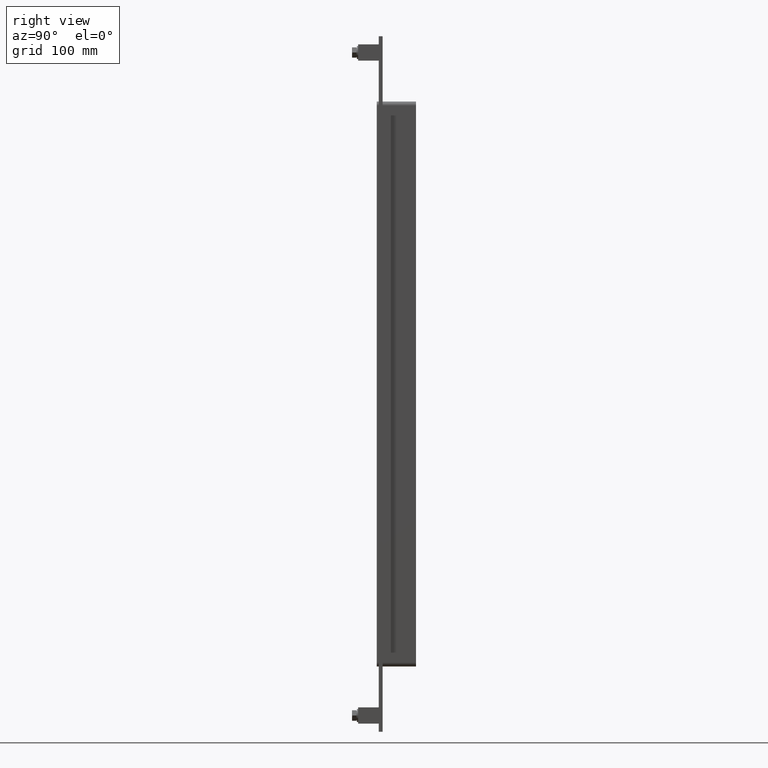
[diagram: clean part render]
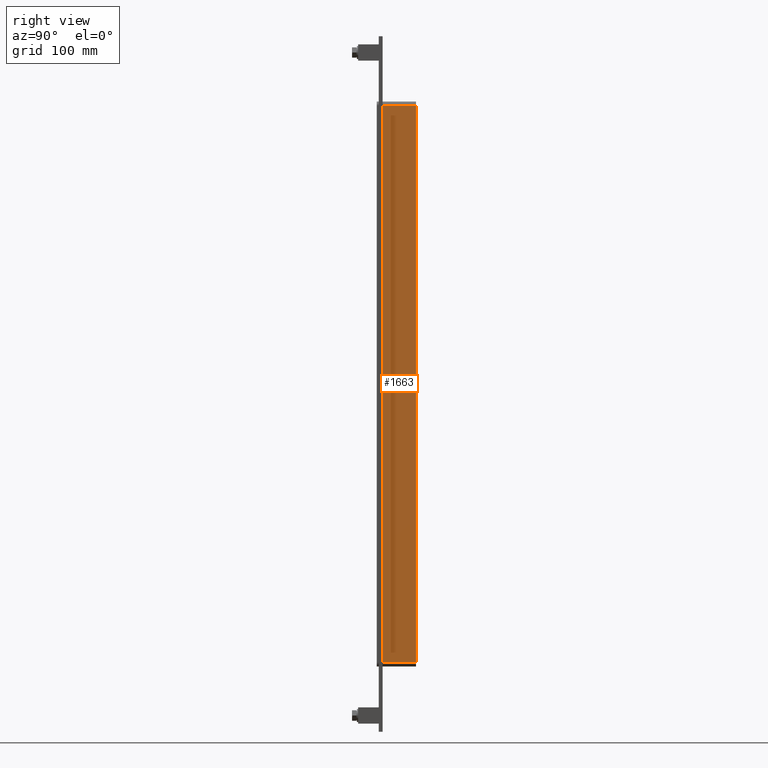
[diagram: same view with one face highlighted and labeled with its STEP entity id]
A machine part, right view. The second image highlights one B-rep face of the part: STEP entity #1663.
In plain terms, the highlighted planar face has unit normal (1, 0, 0).
Its self-contained STEP definition (entity closure, byte-faithful):
#936=CARTESIAN_POINT('',(66.25,6.000000000000001,-427.0));
#937=VERTEX_POINT('',#936);
#945=CARTESIAN_POINT('',(66.25,6.000000000000001,427.0));
#946=VERTEX_POINT('',#945);
#947=CARTESIAN_POINT('',(66.25,6.000000000000001,427.00000000000006));
#948=DIRECTION('',(0.0,0.0,-1.0));
#949=VECTOR('',#948,854.0);
#950=LINE('',#947,#949);
#951=EDGE_CURVE('',#946,#937,#950,.T.);
#1274=CARTESIAN_POINT('',(66.25,57.0,-426.99999999999994));
#1275=VERTEX_POINT('',#1274);
#1283=CARTESIAN_POINT('',(66.25,57.0,-427.0));
#1284=DIRECTION('',(0.0,-1.0,0.0));
#1285=VECTOR('',#1284,51.0);
#1286=LINE('',#1283,#1285);
#1287=EDGE_CURVE('',#1275,#937,#1286,.T.);
#1628=CARTESIAN_POINT('',(66.25,57.0,427.0));
#1629=VERTEX_POINT('',#1628);
#1630=CARTESIAN_POINT('',(66.25,6.000000000000001,427.0));
#1631=DIRECTION('',(0.0,1.0,0.0));
#1632=VECTOR('',#1631,51.0);
#1633=LINE('',#1630,#1632);
#1634=EDGE_CURVE('',#946,#1629,#1633,.T.);
#1647=CARTESIAN_POINT('',(66.25,0.0,433.00000000000006));
#1648=DIRECTION('',(1.0,0.0,0.0));
#1649=DIRECTION('',(0.0,0.0,-1.0));
#1650=AXIS2_PLACEMENT_3D('',#1647,#1648,#1649);
#1651=PLANE('',#1650);
#1652=ORIENTED_EDGE('',*,*,#951,.T.);
#1653=ORIENTED_EDGE('',*,*,#1287,.F.);
#1654=CARTESIAN_POINT('',(66.25,57.0,427.00000000000006));
#1655=DIRECTION('',(0.0,0.0,-1.0));
#1656=VECTOR('',#1655,854.0);
#1657=LINE('',#1654,#1656);
#1658=EDGE_CURVE('',#1629,#1275,#1657,.T.);
#1659=ORIENTED_EDGE('',*,*,#1658,.F.);
#1660=ORIENTED_EDGE('',*,*,#1634,.F.);
#1661=EDGE_LOOP('',(#1652,#1653,#1659,#1660));
#1662=FACE_OUTER_BOUND('',#1661,.T.);
#1663=ADVANCED_FACE('',(#1662),#1651,.T.);